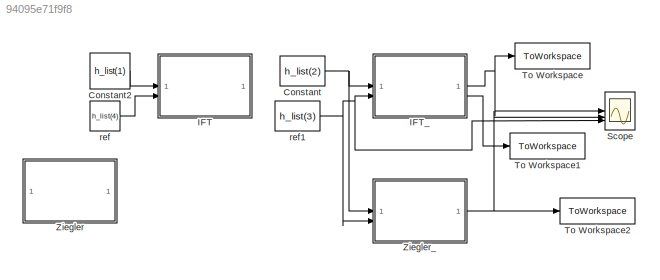
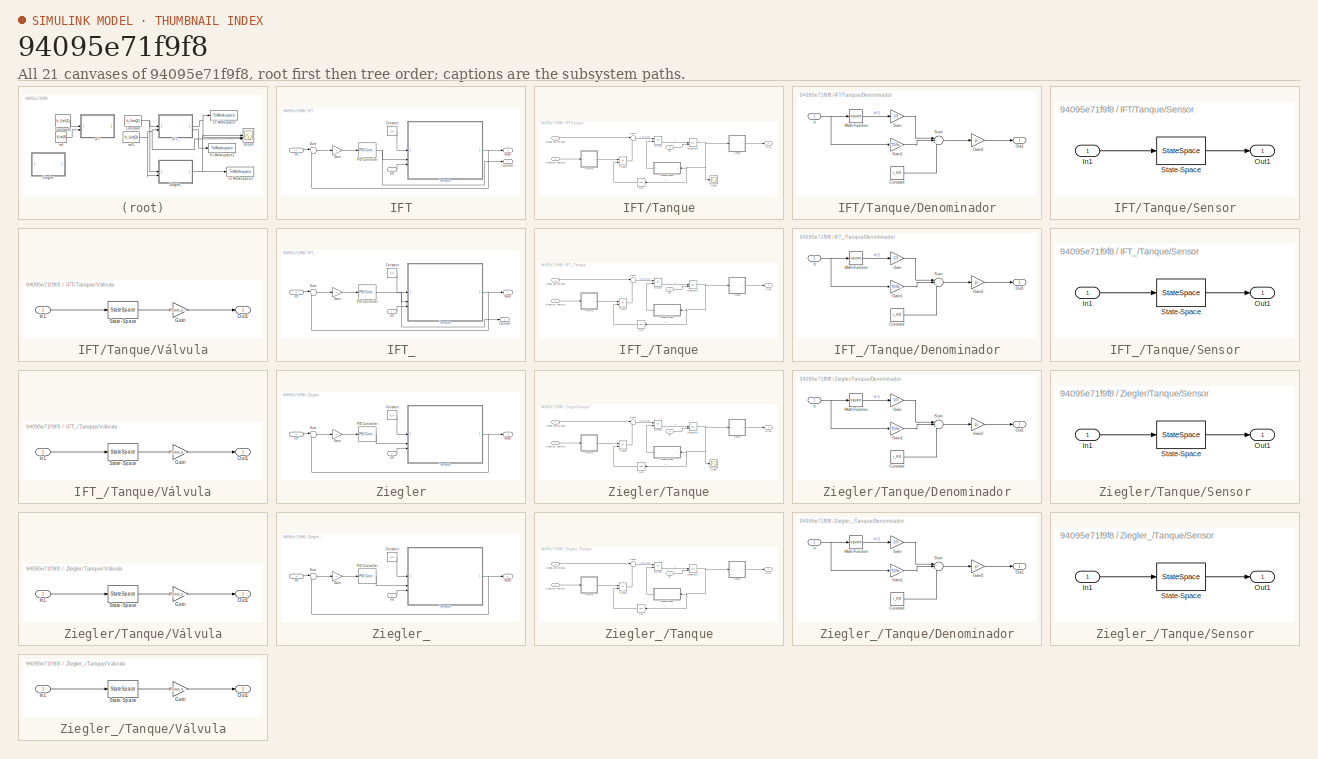
[diagram: thumbnail index - all 21 canvases of the model, root first then tree order]
MODEL slx_94095e71f9f8
KIND model
CONFIG AbsTol = auto
CONFIG EnableMultiTasking = off
CONFIG FixedStep = 0.02
CONFIG MaxStep = auto
CONFIG MinStep = auto
CONFIG RelTol = 1e-3
CONFIG SampleTimeConstraint = Unconstrained
CONFIG SolverName = ode4
CONFIG StartTime = 0.0
CONFIG StopTime = 250
BLOCK [Constant] Constant
  Value = h_list(2)
BLOCK [Constant] Constant2
  Commented = on
  Value = h_list(1)
BLOCK [SubSystem] IFT
  Commented = on
BLOCK [Constant] IFT/Constant
  Value = F_in
BLOCK [Outport] IFT/Control
  Port = 2
BLOCK [Gain] IFT/Gain
  Gain = -1
BLOCK [Outport] IFT/Nivel
BLOCK [Reference] IFT/PID Controller  REF=slpidlib/PID Controller
  SourceBlock = slpidlib/PID Controller
  SourceType = PID 1dof
BLOCK [Sum] IFT/Sum
  Inputs = |+-
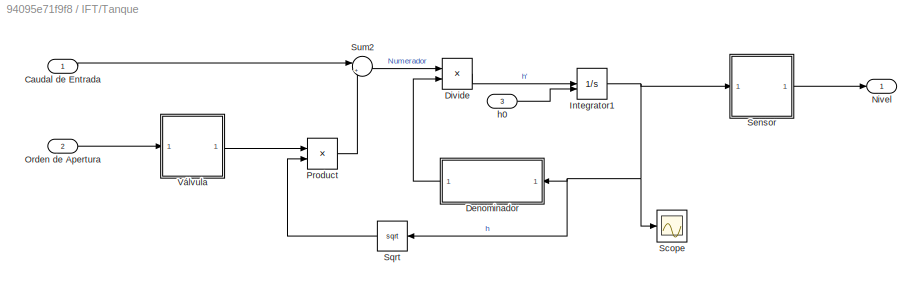
BLOCK [SubSystem] IFT/Tanque
BLOCK [Inport] IFT/Tanque/Caudal de Entrada
BLOCK [SubSystem] IFT/Tanque/Denominador
  NameLocation = top
BLOCK [Constant] IFT/Tanque/Denominador/Constant
  Value = r_0^2
BLOCK [Gain] IFT/Tanque/Denominador/Gain
  Gain = 1/3
BLOCK [Gain] IFT/Tanque/Denominador/Gain1
  Gain = 2*(1/tand(theta))*r_0
BLOCK [Gain] IFT/Tanque/Denominador/Gain2
  Gain = pi
BLOCK [Math] IFT/Tanque/Denominador/Math Function
  Operator = square
BLOCK [Outport] IFT/Tanque/Denominador/Out1
BLOCK [Sum] IFT/Tanque/Denominador/Sum
  Inputs = |+++
BLOCK [Inport] IFT/Tanque/Denominador/h
BLOCK [Product] IFT/Tanque/Divide
  Inputs = */
BLOCK [Integrator] IFT/Tanque/Integrator1
  InitialCondition = h_list(5)
  InitialConditionSource = external
BLOCK [Outport] IFT/Tanque/Nivel
BLOCK [Inport] IFT/Tanque/Orden de Apertura
  Port = 2
BLOCK [Product] IFT/Tanque/Product
BLOCK [Scope] IFT/Tanque/Scope
  Floating = off
  NumInputPorts = 1
  ScopeSpecificationString = Simulink.scopes.TimeScopeBlockCfg('CurrentConfiguration', extmgr.ConfigurationSet(extmgr.Configuration('Core','General UI',true),extmgr.Configuration('Core','Source UI',true),extmgr.Configuration('Sources','WiredSimulink',true,'DataLoggingVariableName','ScopeData1'),extmgr.Configuration('Visuals','Time Domain',true),extmgr.Configuration('Tools','Plot Navigation',true),extmgr.Configuration('Tools',...<+40ch>
BLOCK [SubSystem] IFT/Tanque/Sensor
BLOCK [Inport] IFT/Tanque/Sensor/In1
BLOCK [Outport] IFT/Tanque/Sensor/Out1
BLOCK [StateSpace] IFT/Tanque/Sensor/State-Space
  A = A
  B = B
  C = C
  D = D
  InitialCondition = h_list(1)*10
BLOCK [Sqrt] IFT/Tanque/Sqrt
  NameLocation = top
BLOCK [Sum] IFT/Tanque/Sum2
  Inputs = |+-
BLOCK [SubSystem] IFT/Tanque/Válvula
BLOCK [Gain] IFT/Tanque/Válvula/Gain
  Gain = F_out_sin_k
BLOCK [Inport] IFT/Tanque/Válvula/In1
BLOCK [Outport] IFT/Tanque/Válvula/Out1
BLOCK [StateSpace] IFT/Tanque/Válvula/State-Space
  A = A
  B = B
  C = C
  D = D
  InitialCondition = k_list(1)*10
BLOCK [Inport] IFT/Tanque/h0
  Port = 3
BLOCK [Inport] IFT/h0
BLOCK [Inport] IFT/ref
  Port = 2
BLOCK [SubSystem] IFT_
BLOCK [Constant] IFT_/Constant
  Value = F_in
BLOCK [Outport] IFT_/Control
  Port = 2
BLOCK [Gain] IFT_/Gain
  Gain = -1
BLOCK [Outport] IFT_/Nivel
BLOCK [Reference] IFT_/PID Controller  REF=slpidlib/PID Controller
  SourceBlock = slpidlib/PID Controller
  SourceType = PID 1dof
BLOCK [Sum] IFT_/Sum
  Inputs = |+-
BLOCK [SubSystem] IFT_/Tanque
BLOCK [Inport] IFT_/Tanque/Caudal de Entrada
BLOCK [SubSystem] IFT_/Tanque/Denominador
  NameLocation = top
BLOCK [Constant] IFT_/Tanque/Denominador/Constant
  Value = r_0^2
BLOCK [Gain] IFT_/Tanque/Denominador/Gain
  Gain = 1/3
BLOCK [Gain] IFT_/Tanque/Denominador/Gain1
  Gain = 2*(1/tand(theta))*r_0
BLOCK [Gain] IFT_/Tanque/Denominador/Gain2
  Gain = pi
BLOCK [Math] IFT_/Tanque/Denominador/Math Function
  Operator = square
BLOCK [Outport] IFT_/Tanque/Denominador/Out1
BLOCK [Sum] IFT_/Tanque/Denominador/Sum
  Inputs = |+++
BLOCK [Inport] IFT_/Tanque/Denominador/h
BLOCK [Product] IFT_/Tanque/Divide
  Inputs = */
BLOCK [Integrator] IFT_/Tanque/Integrator1
  InitialCondition = h_list(5)
  InitialConditionSource = external
BLOCK [Outport] IFT_/Tanque/Nivel
BLOCK [Inport] IFT_/Tanque/Orden de Apertura
  Port = 2
BLOCK [Product] IFT_/Tanque/Product
BLOCK [SubSystem] IFT_/Tanque/Sensor
BLOCK [Inport] IFT_/Tanque/Sensor/In1
BLOCK [Outport] IFT_/Tanque/Sensor/Out1
BLOCK [StateSpace] IFT_/Tanque/Sensor/State-Space
  A = A
  B = B
  C = C
  D = D
  InitialCondition = h_list(2)*10
BLOCK [Sqrt] IFT_/Tanque/Sqrt
  NameLocation = top
BLOCK [Sum] IFT_/Tanque/Sum2
  Inputs = |+-
BLOCK [SubSystem] IFT_/Tanque/Válvula
BLOCK [Gain] IFT_/Tanque/Válvula/Gain
  Gain = F_out_sin_k
BLOCK [Inport] IFT_/Tanque/Válvula/In1
BLOCK [Outport] IFT_/Tanque/Válvula/Out1
BLOCK [StateSpace] IFT_/Tanque/Válvula/State-Space
  A = A
  B = B
  C = C
  D = D
  InitialCondition = k_list(2)*10
BLOCK [Inport] IFT_/Tanque/h0
  Port = 3
BLOCK [Inport] IFT_/h0
BLOCK [Inport] IFT_/ref
  Port = 2
BLOCK [Scope] Scope
  Floating = off
  NumInputPorts = 3
  ScopeSpecificationString = Simulink.scopes.TimeScopeBlockCfg('CurrentConfiguration', extmgr.ConfigurationSet(extmgr.Configuration('Core','General UI',true),extmgr.Configuration('Core','Source UI',true),extmgr.Configuration('Sources','WiredSimulink',true,'DataLoggingVariableName','ScopeData6'),extmgr.Configuration('Visuals','Time Domain',true,'SerializedDisplays',{struct('MinYLimReal','0.37064','MaxYLimReal','0.6642','YLabel...<+1493ch>
BLOCK [ToWorkspace] To Workspace
  FixptAsFi = on
  MaxDataPoints = inf
  SampleTime = -1
  SaveFormat = Timeseries
  VariableName = nivout
BLOCK [ToWorkspace] To Workspace1
  FixptAsFi = on
  MaxDataPoints = inf
  SampleTime = -1
  SaveFormat = Timeseries
  VariableName = ctrout
BLOCK [ToWorkspace] To Workspace2
  FixptAsFi = on
  MaxDataPoints = inf
  SampleTime = -1
  SaveFormat = Timeseries
  VariableName = nivout1
BLOCK [SubSystem] Ziegler
  Commented = on
BLOCK [Constant] Ziegler/Constant
  Value = F_in
BLOCK [Gain] Ziegler/Gain
  Gain = -1
BLOCK [Outport] Ziegler/Nivel
BLOCK [Reference] Ziegler/PID Controller  REF=slpidlib/PID Controller
  SourceBlock = slpidlib/PID Controller
  SourceType = PID 1dof
BLOCK [Sum] Ziegler/Sum
  Inputs = |+-
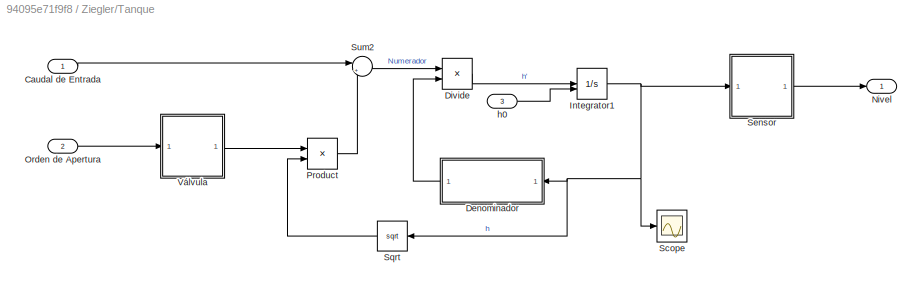
BLOCK [SubSystem] Ziegler/Tanque
BLOCK [Inport] Ziegler/Tanque/Caudal de Entrada
BLOCK [SubSystem] Ziegler/Tanque/Denominador
  NameLocation = top
BLOCK [Constant] Ziegler/Tanque/Denominador/Constant
  Value = r_0^2
BLOCK [Gain] Ziegler/Tanque/Denominador/Gain
  Gain = 1/3
BLOCK [Gain] Ziegler/Tanque/Denominador/Gain1
  Gain = 2*(1/tand(theta))*r_0
BLOCK [Gain] Ziegler/Tanque/Denominador/Gain2
  Gain = pi
BLOCK [Math] Ziegler/Tanque/Denominador/Math Function
  Operator = square
BLOCK [Outport] Ziegler/Tanque/Denominador/Out1
BLOCK [Sum] Ziegler/Tanque/Denominador/Sum
  Inputs = |+++
BLOCK [Inport] Ziegler/Tanque/Denominador/h
BLOCK [Product] Ziegler/Tanque/Divide
  Inputs = */
BLOCK [Integrator] Ziegler/Tanque/Integrator1
  InitialCondition = h_list(5)
  InitialConditionSource = external
BLOCK [Outport] Ziegler/Tanque/Nivel
BLOCK [Inport] Ziegler/Tanque/Orden de Apertura
  Port = 2
BLOCK [Product] Ziegler/Tanque/Product
BLOCK [Scope] Ziegler/Tanque/Scope
  Floating = off
  NumInputPorts = 1
  ScopeSpecificationString = Simulink.scopes.TimeScopeBlockCfg('CurrentConfiguration', extmgr.ConfigurationSet(extmgr.Configuration('Core','General UI',true),extmgr.Configuration('Core','Source UI',true),extmgr.Configuration('Sources','WiredSimulink',true,'DataLoggingVariableName','ScopeData1'),extmgr.Configuration('Visuals','Time Domain',true),extmgr.Configuration('Tools','Plot Navigation',true),extmgr.Configuration('Tools',...<+40ch>
BLOCK [SubSystem] Ziegler/Tanque/Sensor
BLOCK [Inport] Ziegler/Tanque/Sensor/In1
BLOCK [Outport] Ziegler/Tanque/Sensor/Out1
BLOCK [StateSpace] Ziegler/Tanque/Sensor/State-Space
  A = A
  B = B
  C = C
  D = D
  InitialCondition = h_list(1)*10
BLOCK [Sqrt] Ziegler/Tanque/Sqrt
  NameLocation = top
BLOCK [Sum] Ziegler/Tanque/Sum2
  Inputs = |+-
BLOCK [SubSystem] Ziegler/Tanque/Válvula
BLOCK [Gain] Ziegler/Tanque/Válvula/Gain
  Gain = F_out_sin_k
BLOCK [Inport] Ziegler/Tanque/Válvula/In1
BLOCK [Outport] Ziegler/Tanque/Válvula/Out1
BLOCK [StateSpace] Ziegler/Tanque/Válvula/State-Space
  A = A
  B = B
  C = C
  D = D
  InitialCondition = k_list(1)*10
BLOCK [Inport] Ziegler/Tanque/h0
  Port = 3
BLOCK [Inport] Ziegler/h0
BLOCK [Inport] Ziegler/ref
  Port = 2
BLOCK [SubSystem] Ziegler_
BLOCK [Constant] Ziegler_/Constant
  Value = F_in
BLOCK [Gain] Ziegler_/Gain
  Gain = -1
BLOCK [Outport] Ziegler_/Nivel
BLOCK [Reference] Ziegler_/PID Controller  REF=slpidlib/PID Controller
  SourceBlock = slpidlib/PID Controller
  SourceType = PID 1dof
BLOCK [Sum] Ziegler_/Sum
  Inputs = |+-
BLOCK [SubSystem] Ziegler_/Tanque
BLOCK [Inport] Ziegler_/Tanque/Caudal de Entrada
BLOCK [SubSystem] Ziegler_/Tanque/Denominador
  NameLocation = top
BLOCK [Constant] Ziegler_/Tanque/Denominador/Constant
  Value = r_0^2
BLOCK [Gain] Ziegler_/Tanque/Denominador/Gain
  Gain = 1/3
BLOCK [Gain] Ziegler_/Tanque/Denominador/Gain1
  Gain = 2*(1/tand(theta))*r_0
BLOCK [Gain] Ziegler_/Tanque/Denominador/Gain2
  Gain = pi
BLOCK [Math] Ziegler_/Tanque/Denominador/Math Function
  Operator = square
BLOCK [Outport] Ziegler_/Tanque/Denominador/Out1
BLOCK [Sum] Ziegler_/Tanque/Denominador/Sum
  Inputs = |+++
BLOCK [Inport] Ziegler_/Tanque/Denominador/h
BLOCK [Product] Ziegler_/Tanque/Divide
  Inputs = */
BLOCK [Integrator] Ziegler_/Tanque/Integrator1
  InitialCondition = h_list(5)
  InitialConditionSource = external
BLOCK [Outport] Ziegler_/Tanque/Nivel
BLOCK [Inport] Ziegler_/Tanque/Orden de Apertura
  Port = 2
BLOCK [Product] Ziegler_/Tanque/Product
BLOCK [SubSystem] Ziegler_/Tanque/Sensor
BLOCK [Inport] Ziegler_/Tanque/Sensor/In1
BLOCK [Outport] Ziegler_/Tanque/Sensor/Out1
BLOCK [StateSpace] Ziegler_/Tanque/Sensor/State-Space
  A = A
  B = B
  C = C
  D = D
  InitialCondition = h_list(2)*10
BLOCK [Sqrt] Ziegler_/Tanque/Sqrt
  NameLocation = top
BLOCK [Sum] Ziegler_/Tanque/Sum2
  Inputs = |+-
BLOCK [SubSystem] Ziegler_/Tanque/Válvula
BLOCK [Gain] Ziegler_/Tanque/Válvula/Gain
  Gain = F_out_sin_k
BLOCK [Inport] Ziegler_/Tanque/Válvula/In1
BLOCK [Outport] Ziegler_/Tanque/Válvula/Out1
BLOCK [StateSpace] Ziegler_/Tanque/Válvula/State-Space
  A = A
  B = B
  C = C
  D = D
  InitialCondition = k_list(2)*10
BLOCK [Inport] Ziegler_/Tanque/h0
  Port = 3
BLOCK [Inport] Ziegler_/h0
BLOCK [Inport] Ziegler_/ref
  Port = 2
BLOCK [Constant] ref
  Commented = on
  Value = h_list(4)
BLOCK [Constant] ref1
  Value = h_list(3)
LINE Constant2:1 -> IFT:1
NET Constant:1 -> IFT_:1, Ziegler_:1
LINE IFT/Constant:1 -> IFT/Tanque:1
LINE IFT/Gain:1 -> IFT/PID Controller:1
NET IFT/PID Controller:1 -> IFT/Control:1, IFT/Tanque:2
LINE IFT/Sum:1 -> IFT/Gain:1
LINE IFT/Tanque/Caudal de Entrada:1 -> IFT/Tanque/Sum2:1
LINE IFT/Tanque/Denominador/Constant:1 -> IFT/Tanque/Denominador/Sum:3
LINE IFT/Tanque/Denominador/Gain1:1 -> IFT/Tanque/Denominador/Sum:2
LINE IFT/Tanque/Denominador/Gain2:1 -> IFT/Tanque/Denominador/Out1:1
LINE IFT/Tanque/Denominador/Gain:1 -> IFT/Tanque/Denominador/Sum:1
LINE IFT/Tanque/Denominador/Math Function:1 -> IFT/Tanque/Denominador/Gain:1
LINE IFT/Tanque/Denominador/Sum:1 -> IFT/Tanque/Denominador/Gain2:1
NET IFT/Tanque/Denominador/h:1 -> IFT/Tanque/Denominador/Gain1:1, IFT/Tanque/Denominador/Math Function:1
LINE IFT/Tanque/Denominador:1 -> IFT/Tanque/Divide:2
LINE IFT/Tanque/Divide:1 -> IFT/Tanque/Integrator1:1
NET IFT/Tanque/Integrator1:1 -> IFT/Tanque/Denominador:1, IFT/Tanque/Scope:1, IFT/Tanque/Sensor:1, IFT/Tanque/Sqrt:1
LINE IFT/Tanque/Orden de Apertura:1 -> IFT/Tanque/Válvula:1
LINE IFT/Tanque/Product:1 -> IFT/Tanque/Sum2:2
LINE IFT/Tanque/Sensor/In1:1 -> IFT/Tanque/Sensor/State-Space:1
LINE IFT/Tanque/Sensor/State-Space:1 -> IFT/Tanque/Sensor/Out1:1
LINE IFT/Tanque/Sensor:1 -> IFT/Tanque/Nivel:1
LINE IFT/Tanque/Sqrt:1 -> IFT/Tanque/Product:2
LINE IFT/Tanque/Sum2:1 -> IFT/Tanque/Divide:1
LINE IFT/Tanque/Válvula/Gain:1 -> IFT/Tanque/Válvula/Out1:1
LINE IFT/Tanque/Válvula/In1:1 -> IFT/Tanque/Válvula/State-Space:1
LINE IFT/Tanque/Válvula/State-Space:1 -> IFT/Tanque/Válvula/Gain:1
LINE IFT/Tanque/Válvula:1 -> IFT/Tanque/Product:1
LINE IFT/Tanque/h0:1 -> IFT/Tanque/Integrator1:2
NET IFT/Tanque:1 -> IFT/Nivel:1, IFT/Sum:2
LINE IFT/h0:1 -> IFT/Tanque:3
LINE IFT/ref:1 -> IFT/Sum:1
LINE IFT_/Constant:1 -> IFT_/Tanque:1
LINE IFT_/Gain:1 -> IFT_/PID Controller:1
NET IFT_/PID Controller:1 -> IFT_/Control:1, IFT_/Tanque:2
LINE IFT_/Sum:1 -> IFT_/Gain:1
LINE IFT_/Tanque/Caudal de Entrada:1 -> IFT_/Tanque/Sum2:1
LINE IFT_/Tanque/Denominador/Constant:1 -> IFT_/Tanque/Denominador/Sum:3
LINE IFT_/Tanque/Denominador/Gain1:1 -> IFT_/Tanque/Denominador/Sum:2
LINE IFT_/Tanque/Denominador/Gain2:1 -> IFT_/Tanque/Denominador/Out1:1
LINE IFT_/Tanque/Denominador/Gain:1 -> IFT_/Tanque/Denominador/Sum:1
LINE IFT_/Tanque/Denominador/Math Function:1 -> IFT_/Tanque/Denominador/Gain:1
LINE IFT_/Tanque/Denominador/Sum:1 -> IFT_/Tanque/Denominador/Gain2:1
NET IFT_/Tanque/Denominador/h:1 -> IFT_/Tanque/Denominador/Gain1:1, IFT_/Tanque/Denominador/Math Function:1
LINE IFT_/Tanque/Denominador:1 -> IFT_/Tanque/Divide:2
LINE IFT_/Tanque/Divide:1 -> IFT_/Tanque/Integrator1:1
NET IFT_/Tanque/Integrator1:1 -> IFT_/Tanque/Denominador:1, IFT_/Tanque/Sensor:1, IFT_/Tanque/Sqrt:1
LINE IFT_/Tanque/Orden de Apertura:1 -> IFT_/Tanque/Válvula:1
LINE IFT_/Tanque/Product:1 -> IFT_/Tanque/Sum2:2
LINE IFT_/Tanque/Sensor/In1:1 -> IFT_/Tanque/Sensor/State-Space:1
LINE IFT_/Tanque/Sensor/State-Space:1 -> IFT_/Tanque/Sensor/Out1:1
LINE IFT_/Tanque/Sensor:1 -> IFT_/Tanque/Nivel:1
LINE IFT_/Tanque/Sqrt:1 -> IFT_/Tanque/Product:2
LINE IFT_/Tanque/Sum2:1 -> IFT_/Tanque/Divide:1
LINE IFT_/Tanque/Válvula/Gain:1 -> IFT_/Tanque/Válvula/Out1:1
LINE IFT_/Tanque/Válvula/In1:1 -> IFT_/Tanque/Válvula/State-Space:1
LINE IFT_/Tanque/Válvula/State-Space:1 -> IFT_/Tanque/Válvula/Gain:1
LINE IFT_/Tanque/Válvula:1 -> IFT_/Tanque/Product:1
LINE IFT_/Tanque/h0:1 -> IFT_/Tanque/Integrator1:2
NET IFT_/Tanque:1 -> IFT_/Nivel:1, IFT_/Sum:2
LINE IFT_/h0:1 -> IFT_/Tanque:3
LINE IFT_/ref:1 -> IFT_/Sum:1
NET IFT_:1 -> Scope:1, To Workspace:1
LINE IFT_:2 -> To Workspace1:1
LINE Ziegler/Constant:1 -> Ziegler/Tanque:1
LINE Ziegler/Gain:1 -> Ziegler/PID Controller:1
LINE Ziegler/PID Controller:1 -> Ziegler/Tanque:2
LINE Ziegler/Sum:1 -> Ziegler/Gain:1
LINE Ziegler/Tanque/Caudal de Entrada:1 -> Ziegler/Tanque/Sum2:1
LINE Ziegler/Tanque/Denominador/Constant:1 -> Ziegler/Tanque/Denominador/Sum:3
LINE Ziegler/Tanque/Denominador/Gain1:1 -> Ziegler/Tanque/Denominador/Sum:2
LINE Ziegler/Tanque/Denominador/Gain2:1 -> Ziegler/Tanque/Denominador/Out1:1
LINE Ziegler/Tanque/Denominador/Gain:1 -> Ziegler/Tanque/Denominador/Sum:1
LINE Ziegler/Tanque/Denominador/Math Function:1 -> Ziegler/Tanque/Denominador/Gain:1
LINE Ziegler/Tanque/Denominador/Sum:1 -> Ziegler/Tanque/Denominador/Gain2:1
NET Ziegler/Tanque/Denominador/h:1 -> Ziegler/Tanque/Denominador/Gain1:1, Ziegler/Tanque/Denominador/Math Function:1
LINE Ziegler/Tanque/Denominador:1 -> Ziegler/Tanque/Divide:2
LINE Ziegler/Tanque/Divide:1 -> Ziegler/Tanque/Integrator1:1
NET Ziegler/Tanque/Integrator1:1 -> Ziegler/Tanque/Denominador:1, Ziegler/Tanque/Scope:1, Ziegler/Tanque/Sensor:1, Ziegler/Tanque/Sqrt:1
LINE Ziegler/Tanque/Orden de Apertura:1 -> Ziegler/Tanque/Válvula:1
LINE Ziegler/Tanque/Product:1 -> Ziegler/Tanque/Sum2:2
LINE Ziegler/Tanque/Sensor/In1:1 -> Ziegler/Tanque/Sensor/State-Space:1
LINE Ziegler/Tanque/Sensor/State-Space:1 -> Ziegler/Tanque/Sensor/Out1:1
LINE Ziegler/Tanque/Sensor:1 -> Ziegler/Tanque/Nivel:1
LINE Ziegler/Tanque/Sqrt:1 -> Ziegler/Tanque/Product:2
LINE Ziegler/Tanque/Sum2:1 -> Ziegler/Tanque/Divide:1
LINE Ziegler/Tanque/Válvula/Gain:1 -> Ziegler/Tanque/Válvula/Out1:1
LINE Ziegler/Tanque/Válvula/In1:1 -> Ziegler/Tanque/Válvula/State-Space:1
LINE Ziegler/Tanque/Válvula/State-Space:1 -> Ziegler/Tanque/Válvula/Gain:1
LINE Ziegler/Tanque/Válvula:1 -> Ziegler/Tanque/Product:1
LINE Ziegler/Tanque/h0:1 -> Ziegler/Tanque/Integrator1:2
NET Ziegler/Tanque:1 -> Ziegler/Nivel:1, Ziegler/Sum:2
LINE Ziegler/h0:1 -> Ziegler/Tanque:3
LINE Ziegler/ref:1 -> Ziegler/Sum:1
LINE Ziegler_/Constant:1 -> Ziegler_/Tanque:1
LINE Ziegler_/Gain:1 -> Ziegler_/PID Controller:1
LINE Ziegler_/PID Controller:1 -> Ziegler_/Tanque:2
LINE Ziegler_/Sum:1 -> Ziegler_/Gain:1
LINE Ziegler_/Tanque/Caudal de Entrada:1 -> Ziegler_/Tanque/Sum2:1
LINE Ziegler_/Tanque/Denominador/Constant:1 -> Ziegler_/Tanque/Denominador/Sum:3
LINE Ziegler_/Tanque/Denominador/Gain1:1 -> Ziegler_/Tanque/Denominador/Sum:2
LINE Ziegler_/Tanque/Denominador/Gain2:1 -> Ziegler_/Tanque/Denominador/Out1:1
LINE Ziegler_/Tanque/Denominador/Gain:1 -> Ziegler_/Tanque/Denominador/Sum:1
LINE Ziegler_/Tanque/Denominador/Math Function:1 -> Ziegler_/Tanque/Denominador/Gain:1
LINE Ziegler_/Tanque/Denominador/Sum:1 -> Ziegler_/Tanque/Denominador/Gain2:1
NET Ziegler_/Tanque/Denominador/h:1 -> Ziegler_/Tanque/Denominador/Gain1:1, Ziegler_/Tanque/Denominador/Math Function:1
LINE Ziegler_/Tanque/Denominador:1 -> Ziegler_/Tanque/Divide:2
LINE Ziegler_/Tanque/Divide:1 -> Ziegler_/Tanque/Integrator1:1
NET Ziegler_/Tanque/Integrator1:1 -> Ziegler_/Tanque/Denominador:1, Ziegler_/Tanque/Sensor:1, Ziegler_/Tanque/Sqrt:1
LINE Ziegler_/Tanque/Orden de Apertura:1 -> Ziegler_/Tanque/Válvula:1
LINE Ziegler_/Tanque/Product:1 -> Ziegler_/Tanque/Sum2:2
LINE Ziegler_/Tanque/Sensor/In1:1 -> Ziegler_/Tanque/Sensor/State-Space:1
LINE Ziegler_/Tanque/Sensor/State-Space:1 -> Ziegler_/Tanque/Sensor/Out1:1
LINE Ziegler_/Tanque/Sensor:1 -> Ziegler_/Tanque/Nivel:1
LINE Ziegler_/Tanque/Sqrt:1 -> Ziegler_/Tanque/Product:2
LINE Ziegler_/Tanque/Sum2:1 -> Ziegler_/Tanque/Divide:1
LINE Ziegler_/Tanque/Válvula/Gain:1 -> Ziegler_/Tanque/Válvula/Out1:1
LINE Ziegler_/Tanque/Válvula/In1:1 -> Ziegler_/Tanque/Válvula/State-Space:1
LINE Ziegler_/Tanque/Válvula/State-Space:1 -> Ziegler_/Tanque/Válvula/Gain:1
LINE Ziegler_/Tanque/Válvula:1 -> Ziegler_/Tanque/Product:1
LINE Ziegler_/Tanque/h0:1 -> Ziegler_/Tanque/Integrator1:2
NET Ziegler_/Tanque:1 -> Ziegler_/Nivel:1, Ziegler_/Sum:2
LINE Ziegler_/h0:1 -> Ziegler_/Tanque:3
LINE Ziegler_/ref:1 -> Ziegler_/Sum:1
NET Ziegler_:1 -> Scope:2, To Workspace2:1
NET ref1:1 -> IFT_:2, Scope:3, Ziegler_:2
LINE ref:1 -> IFT:2
note: NET lines group one-source signal fan-out (src -> all destinations, sorted); 1:1 wires keep LINE
